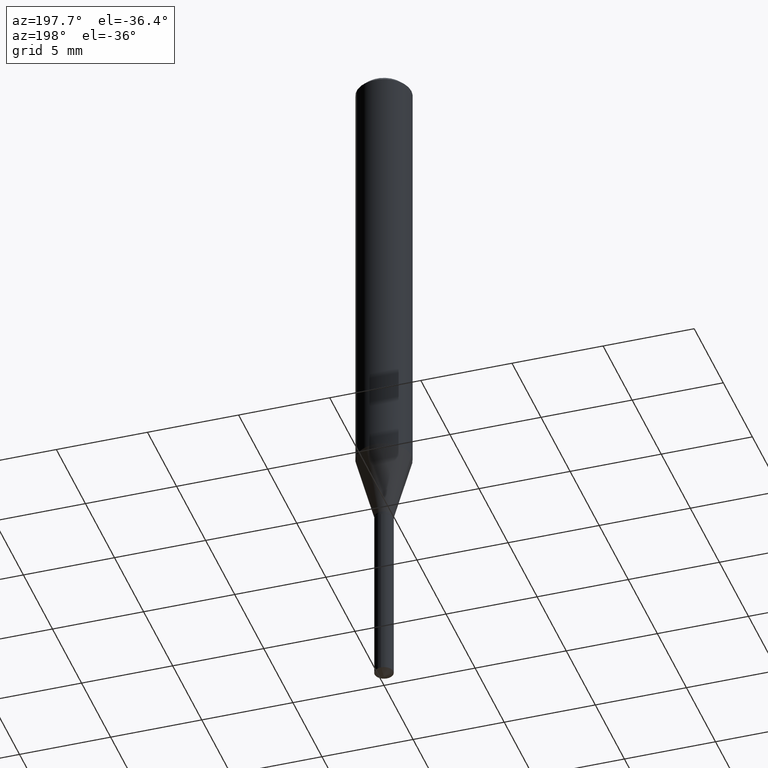
[diagram: clean part render]
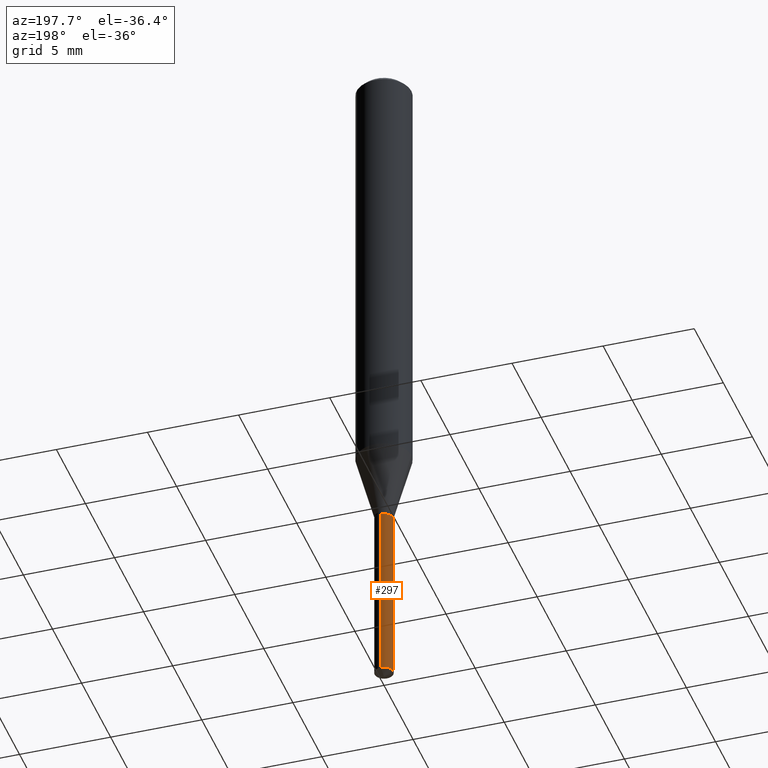
[diagram: same view with one face highlighted and labeled with its STEP entity id]
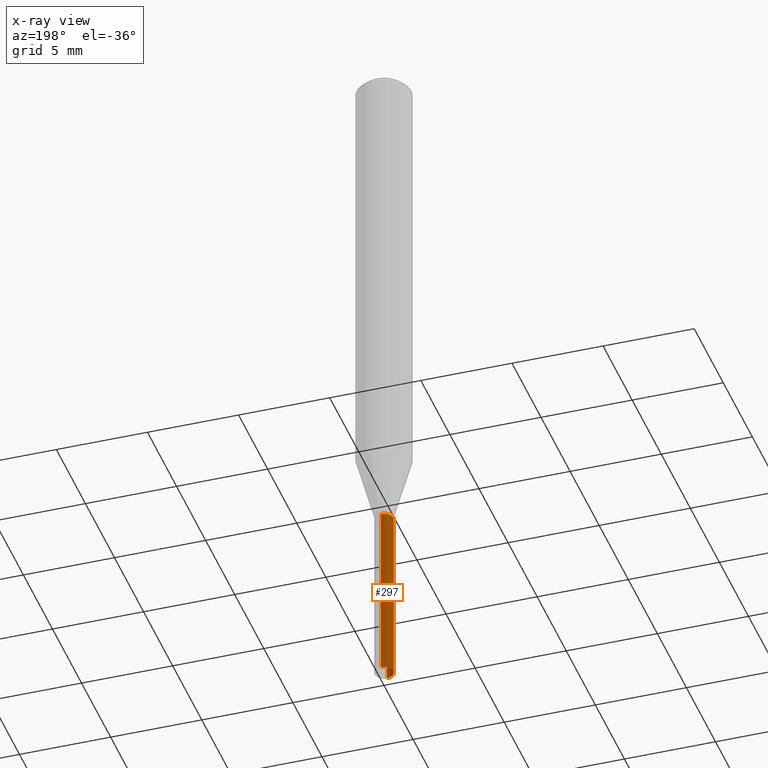
[diagram: x-ray of the same camera — body ghosted, the highlighted face saturated]
A machine part, auxiliary view. The second image highlights one B-rep face of the part: STEP entity #297.
The next image is the same camera in x-ray: the body ghosted, the highlighted face saturated — about 0% of this face is hidden behind the body in this view.
In plain terms, the highlighted cylindrical surface (edge-blend (fillet) strip) has radius 0.5105 mm, axis along (-0, 0, 1).
Its self-contained STEP definition (entity closure, byte-faithful):
#4 = CARTESIAN_POINT ( 'NONE',  ( 1.428190898878068587E-16, 0.02009999999999617995, -1.094500000000000028 ) ) ;
#52 = EDGE_CURVE ( 'NONE', #385, #380, #252, .T. ) ;
#70 = CARTESIAN_POINT ( 'NONE',  ( -1.403575498214575790E-16, -0.02010000000000519357, -1.486727216071084490 ) ) ;
#72 = DIRECTION ( 'NONE',  ( -6.982962677686265922E-15, -1.000000000000000000, 6.795641775284236638E-15 ) ) ;
#85 = VERTEX_POINT ( 'NONE', #70 ) ;
#93 = CYLINDRICAL_SURFACE ( 'NONE', #132, 0.02009999999999999981 ) ;
#115 = VECTOR ( 'NONE', #334, 39.37007874015748143 ) ;
#129 = CARTESIAN_POINT ( 'NONE',  ( 2.676565608369631794E-29, -3.821426325363822773E-15, -1.094499999999999806 ) ) ;
#131 = CARTESIAN_POINT ( 'NONE',  ( -1.403575498214671933E-16, -0.02010000000000381967, -1.094499999999999806 ) ) ;
#132 = AXIS2_PLACEMENT_3D ( 'NONE', #129, #135, #249 ) ;
#135 = DIRECTION ( 'NONE',  ( -2.445470214571802116E-29, 3.491479321953280158E-15, 1.000000000000000000 ) ) ;
#143 = DIRECTION ( 'NONE',  ( -2.445470214571802116E-29, 3.491479321953280158E-15, 1.000000000000000000 ) ) ;
#147 = CARTESIAN_POINT ( 'NONE',  ( 1.428190898878164976E-16, 0.02009999999999480952, -1.486727216071084490 ) ) ;
#181 = ORIENTED_EDGE ( 'NONE', *, *, #218, .T. ) ;
#187 = CARTESIAN_POINT ( 'NONE',  ( 3.635745582615888568E-29, -5.190879539783315426E-15, -1.486727216071084490 ) ) ;
#189 = ORIENTED_EDGE ( 'NONE', *, *, #52, .F. ) ;
#203 = CARTESIAN_POINT ( 'NONE',  ( -1.403575498214671933E-16, -0.02010000000000381967, -1.094499999999999806 ) ) ;
#218 = EDGE_CURVE ( 'NONE', #85, #380, #362, .T. ) ;
#223 = EDGE_LOOP ( 'NONE', ( #328, #474, #181, #189 ) ) ;
#238 = DIRECTION ( 'NONE',  ( -2.445470214571802116E-29, 3.491479321953280158E-15, 1.000000000000000000 ) ) ;
#240 = CIRCLE ( 'NONE', #293, 0.02009999999999999981 ) ;
#249 = DIRECTION ( 'NONE',  ( -6.982962677686265922E-15, -1.000000000000000000, 6.795641775284236638E-15 ) ) ;
#252 = CIRCLE ( 'NONE', #459, 0.02009999999999999981 ) ;
#264 = VECTOR ( 'NONE', #447, 39.37007874015748143 ) ;
#285 = DIRECTION ( 'NONE',  ( -6.982962677686265922E-15, -1.000000000000000000, 0.000000000000000000 ) ) ;
#293 = AXIS2_PLACEMENT_3D ( 'NONE', #187, #143, #285 ) ;
#297 = ADVANCED_FACE ( 'NONE', ( #340 ), #93, .T. ) ;
#299 = CARTESIAN_POINT ( 'NONE',  ( 2.676565608369631794E-29, -3.821426325363822773E-15, -1.094499999999999806 ) ) ;
#328 = ORIENTED_EDGE ( 'NONE', *, *, #356, .F. ) ;
#334 = DIRECTION ( 'NONE',  ( -2.445470214571802396E-29, 3.491479321953280158E-15, 1.000000000000000000 ) ) ;
#340 = FACE_OUTER_BOUND ( 'NONE', #223, .T. ) ;
#356 = EDGE_CURVE ( 'NONE', #396, #385, #410, .T. ) ;
#362 = LINE ( 'NONE', #203, #264 ) ;
#380 = VERTEX_POINT ( 'NONE', #131 ) ;
#383 = CARTESIAN_POINT ( 'NONE',  ( 1.428190898878164976E-16, 0.02009999999999617995, -1.094500000000000028 ) ) ;
#385 = VERTEX_POINT ( 'NONE', #383 ) ;
#396 = VERTEX_POINT ( 'NONE', #147 ) ;
#397 = EDGE_CURVE ( 'NONE', #396, #85, #240, .T. ) ;
#410 = LINE ( 'NONE', #4, #115 ) ;
#447 = DIRECTION ( 'NONE',  ( -2.445470214571802396E-29, 3.491479321953280158E-15, 1.000000000000000000 ) ) ;
#459 = AXIS2_PLACEMENT_3D ( 'NONE', #299, #238, #72 ) ;
#474 = ORIENTED_EDGE ( 'NONE', *, *, #397, .T. ) ;